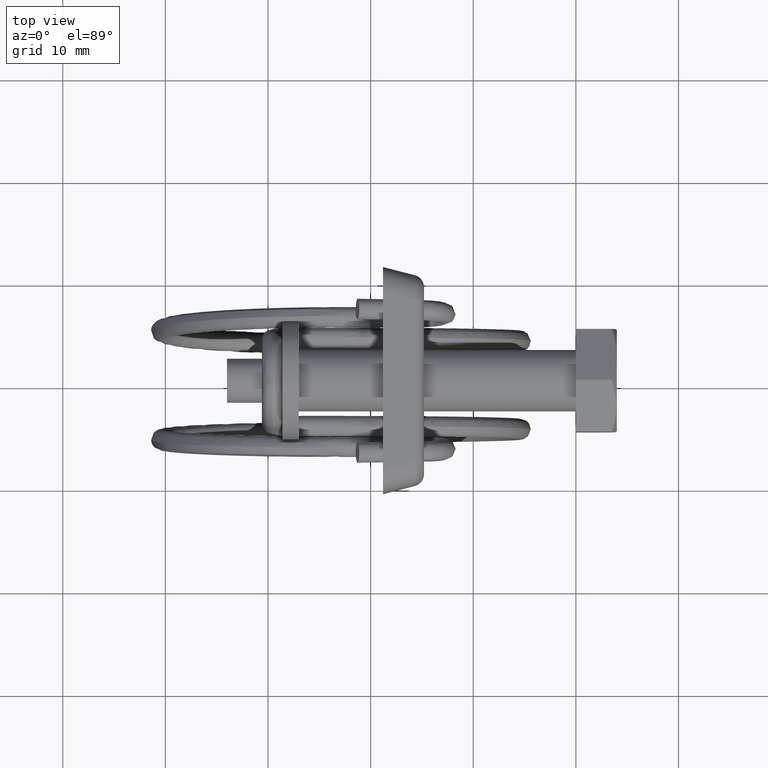
[diagram: clean part render]
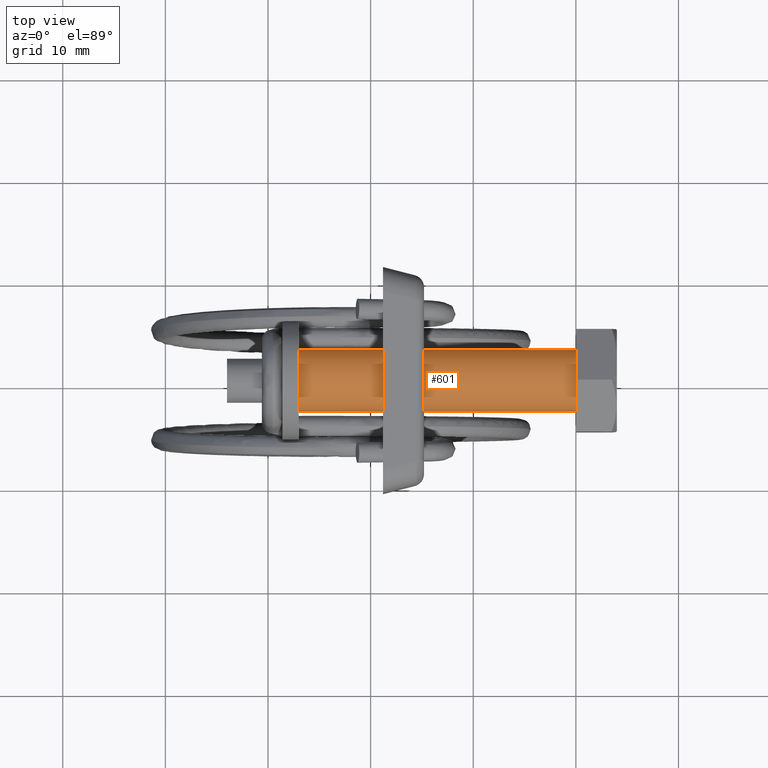
[diagram: same view with one face highlighted and labeled with its STEP entity id]
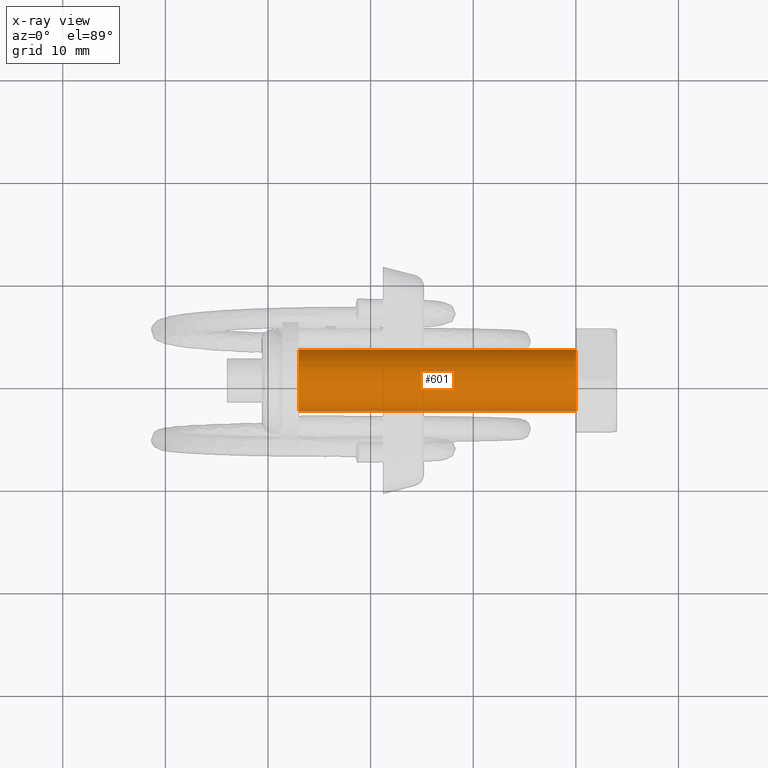
[diagram: x-ray of the same camera — body ghosted, the highlighted face saturated]
A machine part, top view. The second image highlights one B-rep face of the part: STEP entity #601.
The next image is the same camera in x-ray: the body ghosted, the highlighted face saturated — about 0% of this face is hidden behind the body in this view.
In plain terms, the highlighted face is a freeform B-spline surface patch.
Its self-contained STEP definition (entity closure, byte-faithful):
#438=CARTESIAN_POINT('',(9.654056E-016,2.979028579089329,0.354102703985302));
#439=VERTEX_POINT('',#438);
#457=CARTESIAN_POINT('',(9.992007E-016,-2.994404395264782,-0.183145618619848));
#458=VERTEX_POINT('',#457);
#472=CARTESIAN_POINT('',(-27.0,-2.994404395264781,-0.183145618619848));
#473=VERTEX_POINT('',#472);
#474=CARTESIAN_POINT('',(9.992007E-016,-2.994404395264782,-0.183145618619848));
#475=CARTESIAN_POINT('',(-27.0,-2.994404395264781,-0.183145618619848));
#476=QUASI_UNIFORM_CURVE('',1,(#474,#475),.UNSPECIFIED.,.F.,.U.);
#477=EDGE_CURVE('',#458,#473,#476,.T.);
#494=CARTESIAN_POINT('',(-27.0,2.979028579089329,0.354102703985302));
#495=VERTEX_POINT('',#494);
#511=CARTESIAN_POINT('',(9.654056E-016,2.979028579089329,0.354102703985302));
#512=CARTESIAN_POINT('',(-27.0,2.979028579089329,0.354102703985302));
#513=QUASI_UNIFORM_CURVE('',1,(#511,#512),.UNSPECIFIED.,.F.,.U.);
#514=EDGE_CURVE('',#439,#495,#513,.T.);
#519=CARTESIAN_POINT('',(0.675000000000001,-2.994404395265715,-0.183145618604578));
#520=CARTESIAN_POINT('',(0.675000000000001,-3.177550013870294,2.811258776661137));
#521=CARTESIAN_POINT('',(0.675000000000001,-0.183145618604578,2.994404395265715));
#522=CARTESIAN_POINT('',(0.675000000000001,2.644630472518604,3.167358590197703));
#523=CARTESIAN_POINT('',(0.675000000000001,2.979028579091114,0.354102703970289));
#524=CARTESIAN_POINT('',(-27.691875000000000,-2.994404395265715,-0.183145618604578));
#525=CARTESIAN_POINT('',(-27.691875000000007,-3.177550013870294,2.811258776661137));
#526=CARTESIAN_POINT('',(-27.691875000000000,-0.183145618604578,2.994404395265715));
#527=CARTESIAN_POINT('',(-27.691875000000003,2.644630472518604,3.167358590197703));
#528=CARTESIAN_POINT('',(-27.691875000000010,2.979028579091114,0.354102703970289));
#536=(BOUNDED_SURFACE()B_SPLINE_SURFACE(2,1,((#519,#524),(#520,#525),(#521,#526),(#522,#527),(#523,#528)),.UNSPECIFIED.,.F.,.F.,.U.)B_SPLINE_SURFACE_WITH_KNOTS((3,2,3),(2,2),(0.0,4.970562748477330,9.742302987015567),(0.0,28.366875000000011),.UNSPECIFIED.)GEOMETRIC_REPRESENTATION_ITEM()RATIONAL_B_SPLINE_SURFACE(((1.0,1.0),(0.707106781186548,0.707106781186548),(1.0,1.0),(0.718822509939086,0.718822509939086),(0.977505800795127,0.977505800795127)))REPRESENTATION_ITEM('')SURFACE());
#537=CARTESIAN_POINT('',(0.0,0.0,3.000000000000115));
#538=VERTEX_POINT('',#537);
#539=CARTESIAN_POINT('',(0.0,0.0,3.000000000000115));
#540=CARTESIAN_POINT('',(0.0,2.664523577827147,3.000000000000115));
#541=CARTESIAN_POINT('',(9.654056E-016,2.979028579089329,0.354102703985302));
#549=(BOUNDED_CURVE()B_SPLINE_CURVE(2,(#539,#540,#541),.UNSPECIFIED.,.F.,.U.)B_SPLINE_CURVE_WITH_KNOTS((3,3),(0.500000000000000,0.729562473513940),.UNSPECIFIED.)CURVE()GEOMETRIC_REPRESENTATION_ITEM()RATIONAL_B_SPLINE_CURVE((1.0,0.731050832854897,0.956026754184546))REPRESENTATION_ITEM(''));
#550=EDGE_CURVE('',#538,#439,#549,.T.);
#551=ORIENTED_EDGE('',*,*,#550,.T.);
#552=ORIENTED_EDGE('',*,*,#514,.T.);
#553=CARTESIAN_POINT('',(-27.0,0.0,3.000000000000115));
#554=VERTEX_POINT('',#553);
#555=CARTESIAN_POINT('',(-27.0,0.0,3.000000000000115));
#556=CARTESIAN_POINT('',(-27.000000000000004,2.664523577827157,3.000000000000114));
#557=CARTESIAN_POINT('',(-27.000000000000004,2.979028579089329,0.354102703985302));
#565=(BOUNDED_CURVE()B_SPLINE_CURVE(2,(#555,#556,#557),.UNSPECIFIED.,.F.,.U.)B_SPLINE_CURVE_WITH_KNOTS((3,3),(0.0,0.229562473513941),.UNSPECIFIED.)CURVE()GEOMETRIC_REPRESENTATION_ITEM()RATIONAL_B_SPLINE_CURVE((1.0,0.731050832854896,0.956026754184547))REPRESENTATION_ITEM(''));
#566=EDGE_CURVE('',#554,#495,#565,.T.);
#567=ORIENTED_EDGE('',*,*,#566,.F.);
#568=CARTESIAN_POINT('',(-26.999999999999996,-2.994404395264781,-0.183145618619848));
#569=CARTESIAN_POINT('',(-27.0,-3.000000000000116,-0.091658289911083));
#570=CARTESIAN_POINT('',(-27.0,-3.000000000000115,0.0));
#571=CARTESIAN_POINT('',(-27.0,-3.000000000000114,3.000000000000114));
#572=CARTESIAN_POINT('',(-27.0,0.0,3.000000000000115));
#580=(BOUNDED_CURVE()B_SPLINE_CURVE(2,(#568,#569,#570,#571,#572),.UNSPECIFIED.,.F.,.U.)B_SPLINE_CURVE_WITH_KNOTS((3,2,3),(0.739332962240209,0.750000000000000,1.0),.UNSPECIFIED.)CURVE()GEOMETRIC_REPRESENTATION_ITEM()RATIONAL_B_SPLINE_CURVE((0.976072041669430,0.987502787901320,1.0,0.707106781186547,1.0))REPRESENTATION_ITEM(''));
#581=EDGE_CURVE('',#473,#554,#580,.T.);
#582=ORIENTED_EDGE('',*,*,#581,.F.);
#583=ORIENTED_EDGE('',*,*,#477,.F.);
#584=CARTESIAN_POINT('',(9.992007E-016,-2.994404395264782,-0.183145618619848));
#585=CARTESIAN_POINT('',(0.0,-3.000000000000115,-0.091658289911083));
#586=CARTESIAN_POINT('',(0.0,-3.000000000000115,0.0));
#587=CARTESIAN_POINT('',(0.0,-3.000000000000114,3.000000000000114));
#588=CARTESIAN_POINT('',(0.0,0.0,3.000000000000115));
#596=(BOUNDED_CURVE()B_SPLINE_CURVE(2,(#584,#585,#586,#587,#588),.UNSPECIFIED.,.F.,.U.)B_SPLINE_CURVE_WITH_KNOTS((3,2,3),(0.239332962240209,0.250000000000000,0.500000000000000),.UNSPECIFIED.)CURVE()GEOMETRIC_REPRESENTATION_ITEM()RATIONAL_B_SPLINE_CURVE((0.976072041669430,0.987502787901320,1.0,0.707106781186547,1.0))REPRESENTATION_ITEM(''));
#597=EDGE_CURVE('',#458,#538,#596,.T.);
#598=ORIENTED_EDGE('',*,*,#597,.T.);
#599=EDGE_LOOP('',(#551,#552,#567,#582,#583,#598));
#600=FACE_OUTER_BOUND('',#599,.T.);
#601=ADVANCED_FACE('',(#600),#536,.T.);